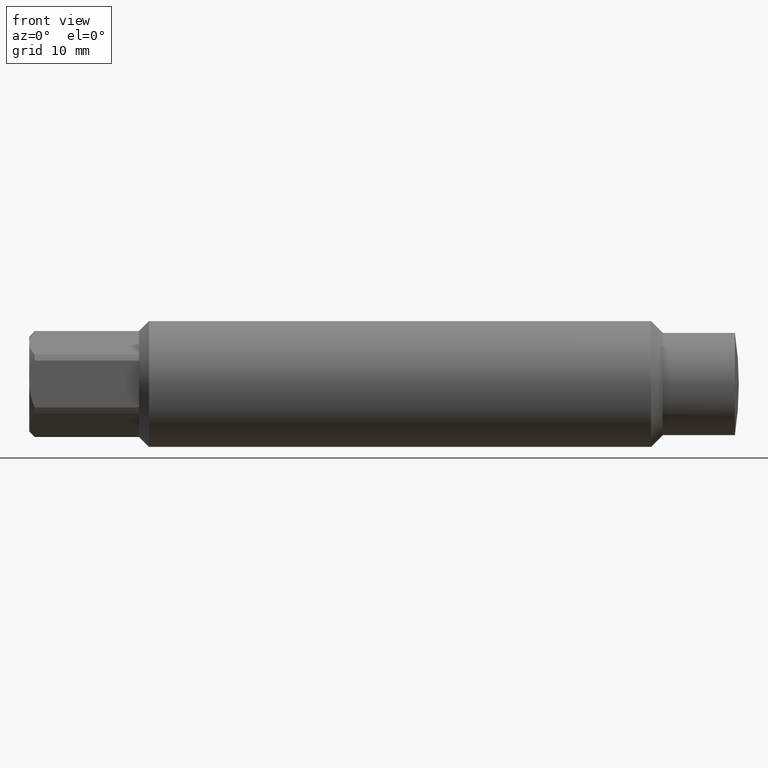
[diagram: clean part render]
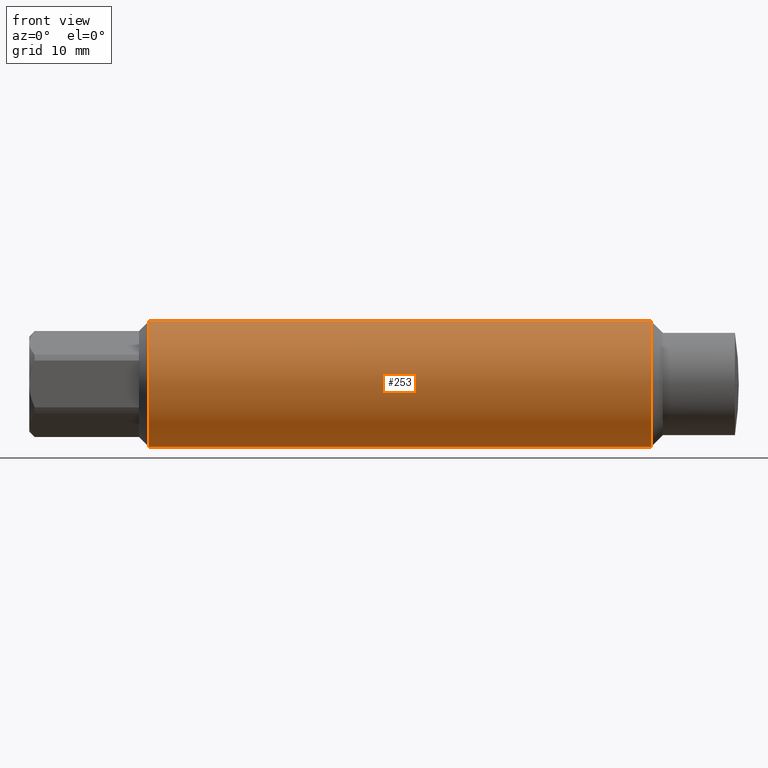
[diagram: same view with one face highlighted and labeled with its STEP entity id]
A machine part, front view. The second image highlights one B-rep face of the part: STEP entity #253.
In plain terms, the highlighted cylindrical surface (partial cylindrical patch) has radius 9.4615 mm, axis along (-1, -0, -0).
Its self-contained STEP definition (entity closure, byte-faithful):
#9 = DIRECTION ( 'NONE',  ( -1.000000000000000000, -0.0000000000000000000, -0.0000000000000000000 ) ) ;
#80 = LINE ( 'NONE', #190, #1081 ) ;
#108 = CARTESIAN_POINT ( 'NONE',  ( -0.5200000000000019100, 0.0000000000000000000, 0.3725000000000000000 ) ) ;
#121 = EDGE_CURVE ( 'NONE', #1127, #260, #80, .T. ) ;
#145 = VERTEX_POINT ( 'NONE', #108 ) ;
#153 = AXIS2_PLACEMENT_3D ( 'NONE', #878, #290, #973 ) ;
#190 = CARTESIAN_POINT ( 'NONE',  ( 0.0000000000000000000, 4.561809326823888000E-017, -0.3724999999999997800 ) ) ;
#216 = DIRECTION ( 'NONE',  ( -1.000000000000000000, -0.0000000000000000000, -0.0000000000000000000 ) ) ;
#223 = VECTOR ( 'NONE', #275, 39.37007874015748100 ) ;
#225 = DIRECTION ( 'NONE',  ( -1.000000000000000000, -0.0000000000000000000, -0.0000000000000000000 ) ) ;
#228 = EDGE_LOOP ( 'NONE', ( #493, #497, #545, #879 ) ) ;
#237 = FACE_OUTER_BOUND ( 'NONE', #228, .T. ) ;
#253 = ADVANCED_FACE ( 'NONE', ( #237 ), #721, .T. ) ;
#260 = VERTEX_POINT ( 'NONE', #308 ) ;
#275 = DIRECTION ( 'NONE',  ( -1.000000000000000000, -0.0000000000000000000, -0.0000000000000000000 ) ) ;
#290 = DIRECTION ( 'NONE',  ( -1.000000000000000000, -0.0000000000000000000, -0.0000000000000000000 ) ) ;
#308 = CARTESIAN_POINT ( 'NONE',  ( -3.491000000000002800, 4.561809326823887400E-017, -0.3724999999999996600 ) ) ;
#309 = EDGE_CURVE ( 'NONE', #260, #529, #1250, .T. ) ;
#427 = EDGE_CURVE ( 'NONE', #145, #529, #471, .T. ) ;
#471 = LINE ( 'NONE', #856, #223 ) ;
#493 = ORIENTED_EDGE ( 'NONE', *, *, #121, .F. ) ;
#497 = ORIENTED_EDGE ( 'NONE', *, *, #1248, .T. ) ;
#529 = VERTEX_POINT ( 'NONE', #876 ) ;
#545 = ORIENTED_EDGE ( 'NONE', *, *, #427, .T. ) ;
#576 = CIRCLE ( 'NONE', #153, 0.3725000000000000000 ) ;
#681 = CARTESIAN_POINT ( 'NONE',  ( -0.5200000000000019100, 4.561809326823890500E-017, -0.3725000000000000000 ) ) ;
#721 = CYLINDRICAL_SURFACE ( 'NONE', #1114, 0.3724999999999997800 ) ;
#811 = CARTESIAN_POINT ( 'NONE',  ( -3.491000000000002800, 0.0000000000000000000, 0.0000000000000000000 ) ) ;
#856 = CARTESIAN_POINT ( 'NONE',  ( 0.0000000000000000000, 0.0000000000000000000, 0.3724999999999997800 ) ) ;
#876 = CARTESIAN_POINT ( 'NONE',  ( -3.491000000000002800, 0.0000000000000000000, 0.3724999999999996600 ) ) ;
#878 = CARTESIAN_POINT ( 'NONE',  ( -0.5200000000000019100, 0.0000000000000000000, 0.0000000000000000000 ) ) ;
#879 = ORIENTED_EDGE ( 'NONE', *, *, #309, .F. ) ;
#908 = DIRECTION ( 'NONE',  ( 0.0000000000000000000, 0.0000000000000000000, 1.000000000000000000 ) ) ;
#973 = DIRECTION ( 'NONE',  ( 0.0000000000000000000, 0.0000000000000000000, 1.000000000000000000 ) ) ;
#1081 = VECTOR ( 'NONE', #9, 39.37007874015748100 ) ;
#1101 = DIRECTION ( 'NONE',  ( 0.0000000000000000000, 0.0000000000000000000, 1.000000000000000000 ) ) ;
#1114 = AXIS2_PLACEMENT_3D ( 'NONE', #1121, #216, #1101 ) ;
#1121 = CARTESIAN_POINT ( 'NONE',  ( 0.0000000000000000000, 0.0000000000000000000, 0.0000000000000000000 ) ) ;
#1127 = VERTEX_POINT ( 'NONE', #681 ) ;
#1175 = AXIS2_PLACEMENT_3D ( 'NONE', #811, #225, #908 ) ;
#1248 = EDGE_CURVE ( 'NONE', #1127, #145, #576, .T. ) ;
#1250 = CIRCLE ( 'NONE', #1175, 0.3724999999999996600 ) ;